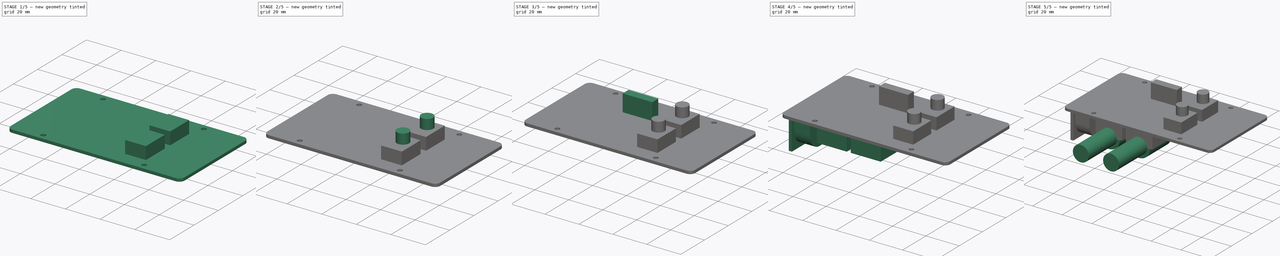
[diagram: build sequence overview — one tinted view per stage of 5, left to right]
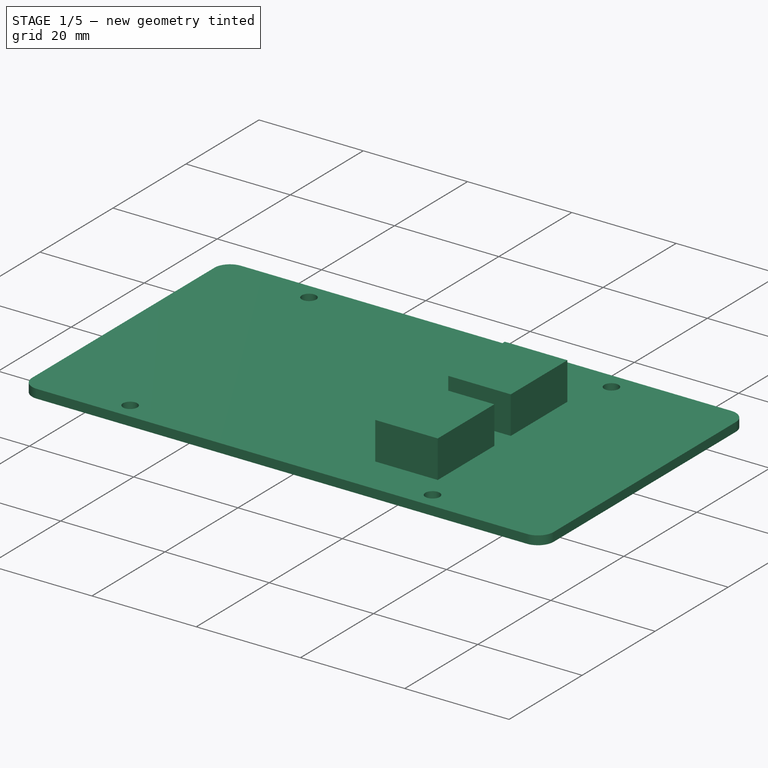
[diagram: stage 1 of 5 — iso view after this stage's code; geometry added in this stage tinted green]
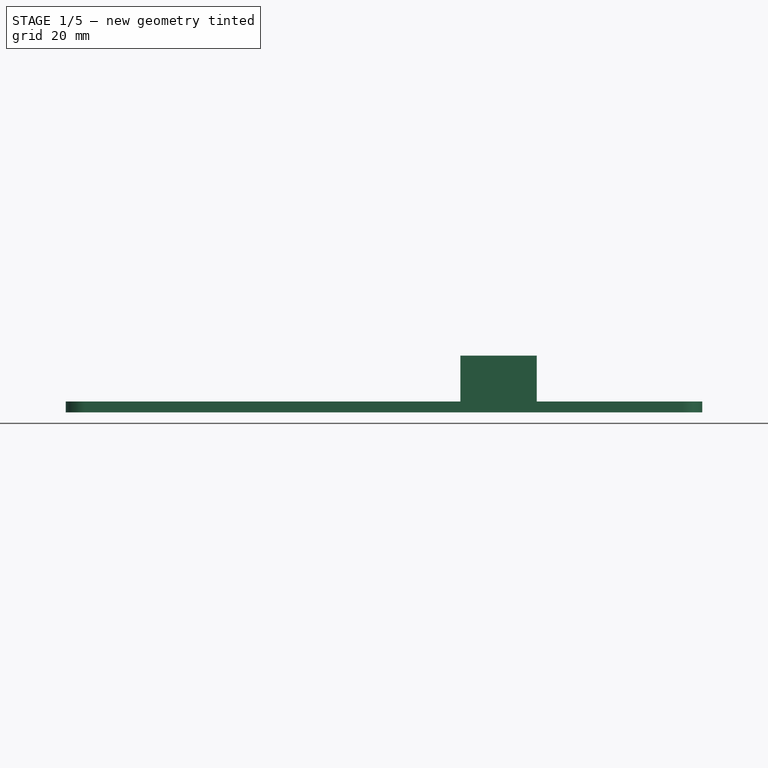
[diagram: stage 1 of 5 — front view after this stage's code; geometry added in this stage tinted green]
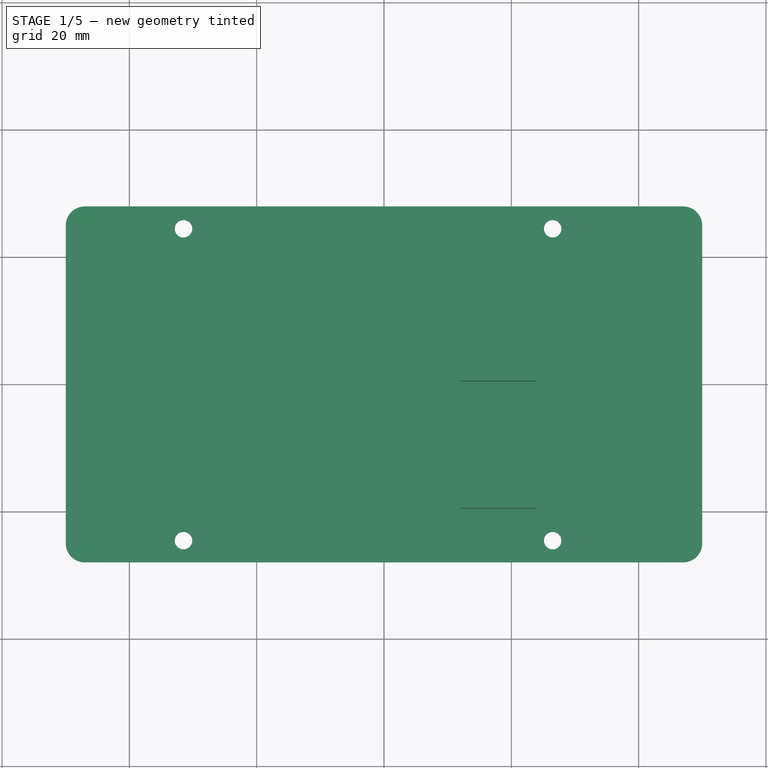
[diagram: stage 1 of 5 — top view after this stage's code; geometry added in this stage tinted green]
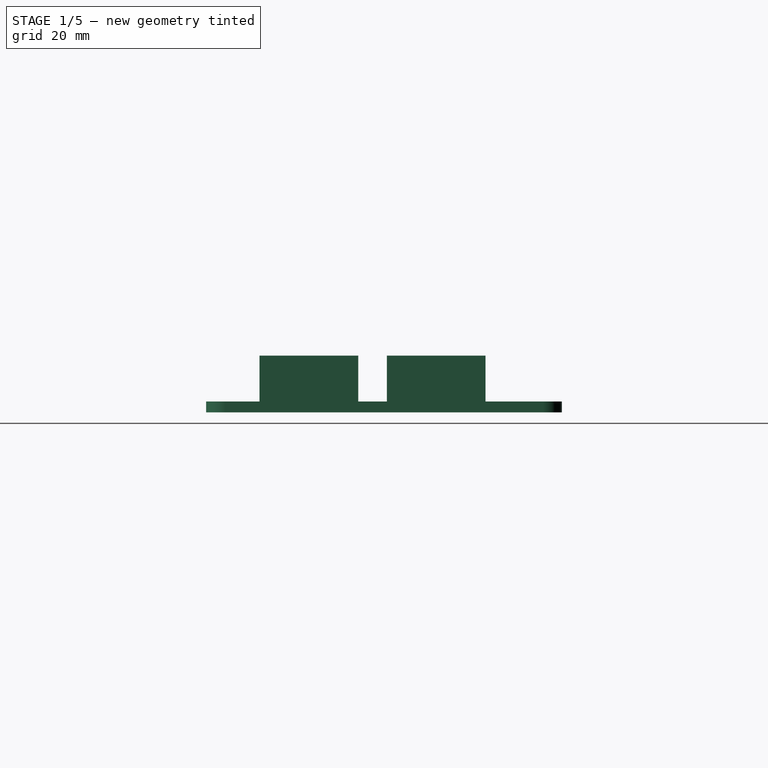
[diagram: stage 1 of 5 — right view after this stage's code; geometry added in this stage tinted green]
FCSTD DOCUMENT  (FreeCAD 0.17R13541 (Git))
Label: pisound
License: All rights reserved
LicenseURL: http://en.wikipedia.org/wiki/All_rights_reserved
objects: Sketcher::SketchObject×13, PartDesign::Pad×12, PartDesign::Chamfer×2, PartDesign::Pocket×1, PartDesign::Body×1
note: 42 computed .brp shape members not serialized (recipe doc carries the construction recipe); baked Part::Feature solids carry a one-line shape summary decoded from their .brp

FEATURE [Sketcher::SketchObject] Sketch008  label="board001"
  MapMode = 5
  Support = -> [XY_Plane001]
  sketch-geometry (8):
    g0: LineSegment StartX=-47 StartY=27.95 StartZ=0 EndX=47 EndY=27.95 EndZ=0
    g1: LineSegment StartX=50 StartY=24.95 StartZ=0 EndX=50 EndY=-24.95 EndZ=0
    g2: LineSegment StartX=47 StartY=-27.95 StartZ=0 EndX=-47 EndY=-27.95 EndZ=0
    g3: LineSegment StartX=-50 StartY=-24.95 StartZ=0 EndX=-50 EndY=24.95 EndZ=0
    g4: ArcOfCircle CenterX=-47 CenterY=24.95 CenterZ=0 NormalX=0 NormalY=0 NormalZ=1 AngleXU=0 Radius=3 StartAngle=1.5708 EndAngle=3.14159
    g5: ArcOfCircle CenterX=-47 CenterY=-24.95 CenterZ=0 NormalX=0 NormalY=0 NormalZ=1 AngleXU=0 Radius=3 StartAngle=3.14159 EndAngle=4.71239
    g6: ArcOfCircle CenterX=47 CenterY=-24.95 CenterZ=0 NormalX=0 NormalY=0 NormalZ=1 AngleXU=0 Radius=3 StartAngle=4.71239 EndAngle=6.28319
    g7: ArcOfCircle CenterX=47 CenterY=24.95 CenterZ=0 NormalX=0 NormalY=0 NormalZ=1 AngleXU=0 Radius=3 StartAngle=0 EndAngle=1.5708
  constraints (20):
    c: Horizontal(g0)
    c: Horizontal(g2)
    c: Vertical(g1)
    c: Vertical(g3)
    c: Tangent(g0,g4) = 1.5708
    c: Tangent(g3,g4) = 1.5708
    c: Tangent(g2,g5) = 1.5708
    c: Tangent(g3,g5) = 1.5708
    c: Tangent(g1,g6) = 1.5708
    c: Tangent(g2,g6) = 1.5708
    c: Tangent(g0,g7) = 1.5708
    c: Tangent(g1,g7) = 1.5708
    c: DistanceX(g-1,g1) = 50
    c: DistanceX(g3,g1) = 100
    c: DistanceY(g-1,g0) = 27.95
    c: DistanceY(g2,g0) = 55.9
    c: Radius(g4) = 3
    c: Equal(g4,g7)
    c: Equal(g4,g6)
    c: Equal(g4,g5)
FEATURE [PartDesign::Pad] Pad007  label="board002"
  Length = 1.7
  Length2 = 100
  Profile = -> Sketch008
  Type = 0
FEATURE [Sketcher::SketchObject] Sketch009  label="pots"
  ExternalGeometry = -> [Pad007]
  MapMode = 5
  Placement = pos=(0,0,1.7) rot=(0,0,1;0rad)
  Support = -> [Pad007]
  sketch-geometry (8):
    g0: LineSegment StartX=12 StartY=15.95 StartZ=0 EndX=24 EndY=15.95 EndZ=0
    g1: LineSegment StartX=24 StartY=15.95 StartZ=0 EndX=24 EndY=0.45 EndZ=0
    g2: LineSegment StartX=24 StartY=0.45 StartZ=0 EndX=12 EndY=0.45 EndZ=0
    g3: LineSegment StartX=12 StartY=0.45 StartZ=0 EndX=12 EndY=15.95 EndZ=0
    g4: LineSegment StartX=12 StartY=-4.05 StartZ=0 EndX=24 EndY=-4.05 EndZ=0
    g5: LineSegment StartX=24 StartY=-4.05 StartZ=0 EndX=24 EndY=-19.55 EndZ=0
    g6: LineSegment StartX=24 StartY=-19.55 StartZ=0 EndX=12 EndY=-19.55 EndZ=0
    g7: LineSegment StartX=12 StartY=-19.55 StartZ=0 EndX=12 EndY=-4.05 EndZ=0
  constraints (24):
    c: Coincident(g0,g1)
    c: Coincident(g1,g2)
    c: Coincident(g2,g3)
    c: Coincident(g3,g0)
    c: Horizontal(g0)
    c: Horizontal(g2)
    c: Vertical(g1)
    c: Vertical(g3)
    c: Coincident(g4,g5)
    c: Coincident(g5,g6)
    c: Coincident(g6,g7)
    c: Coincident(g7,g4)
    c: Horizontal(g4)
    c: Horizontal(g6)
    c: Vertical(g5)
    c: Vertical(g7)
    c: Equal(g0,g4)
    c: Equal(g7,g3)
    c: DistanceY(g3,g3) = 15.5
    c: DistanceX(g0,g0) = 12
    c: DistanceX(g-3,g0) = 62
    c: Vertical(g0,g4)
    c: DistanceY(g4,g2) = 4.5
    c: DistanceY(g0,g-4) = 12
FEATURE [PartDesign::Pad] Pad008  label="potsbase001"
  BaseFeature = -> Pad007
  Length = 7.2
  Length2 = 100
  Profile = -> Sketch009
  Type = 0
FEATURE [Sketcher::SketchObject] Sketch010  label="mountingholes"
  ExternalGeometry = -> [Pad008]
  MapMode = 5
  Placement = pos=(0,0,1.7) rot=(0,0,1;0rad)
  Support = -> [Pad008]
  sketch-geometry (4):
    g0: Circle CenterX=26.5 CenterY=24.45 CenterZ=0 NormalX=0 NormalY=0 NormalZ=1 AngleXU=0 Radius=1.375
    g1: Circle CenterX=-31.5 CenterY=24.45 CenterZ=0 NormalX=0 NormalY=0 NormalZ=1 AngleXU=0 Radius=1.375
    g2: Circle CenterX=-31.5 CenterY=-24.55 CenterZ=0 NormalX=0 NormalY=0 NormalZ=1 AngleXU=0 Radius=1.375
    g3: Circle CenterX=26.5 CenterY=-24.55 CenterZ=0 NormalX=0 NormalY=0 NormalZ=1 AngleXU=0 Radius=1.375
  constraints (12):
    c: DistanceX(g0,g-4) = 23.5
    c: DistanceY(g0,g-3) = 3.5
    c: Radius(g0) = 1.375
    c: Equal(g0,g1)
    c: Equal(g0,g2)
    c: Equal(g0,g3)
    c: Horizontal(g0,g1)
    c: Vertical(g1,g2)
    c: Horizontal(g2,g3)
    c: Vertical(g0,g3)
    c: DistanceX(g2,g3) = 58
    c: DistanceY(g2,g1) = 49
FEATURE [PartDesign::Pocket] Pocket001  label="mountingholes001"
  BaseFeature = -> Pad008
  Length = 5
  Length2 = 100
  Profile = -> Sketch010
  Type = 1
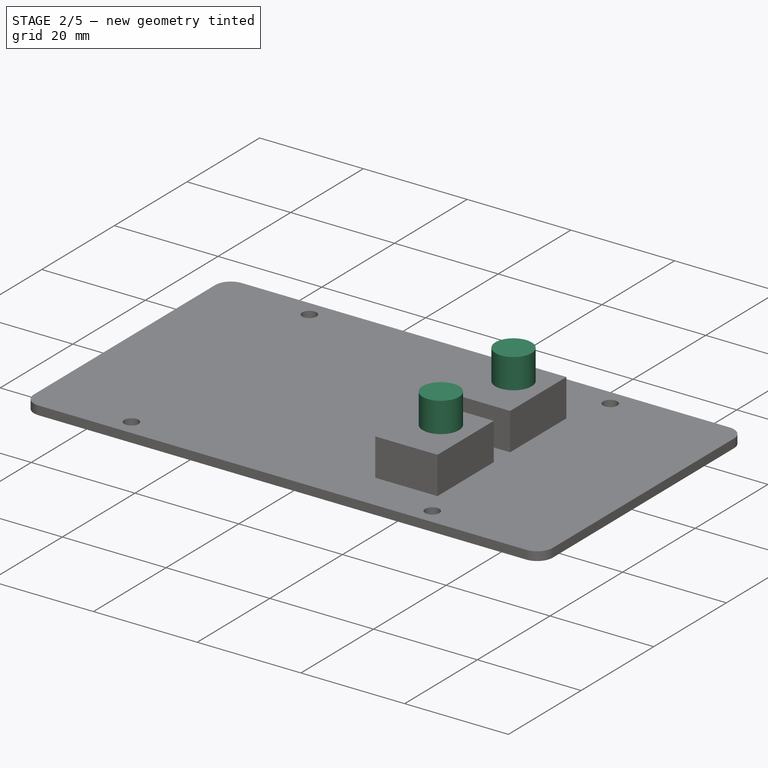
[diagram: stage 2 of 5 — iso view after this stage's code; geometry added in this stage tinted green]
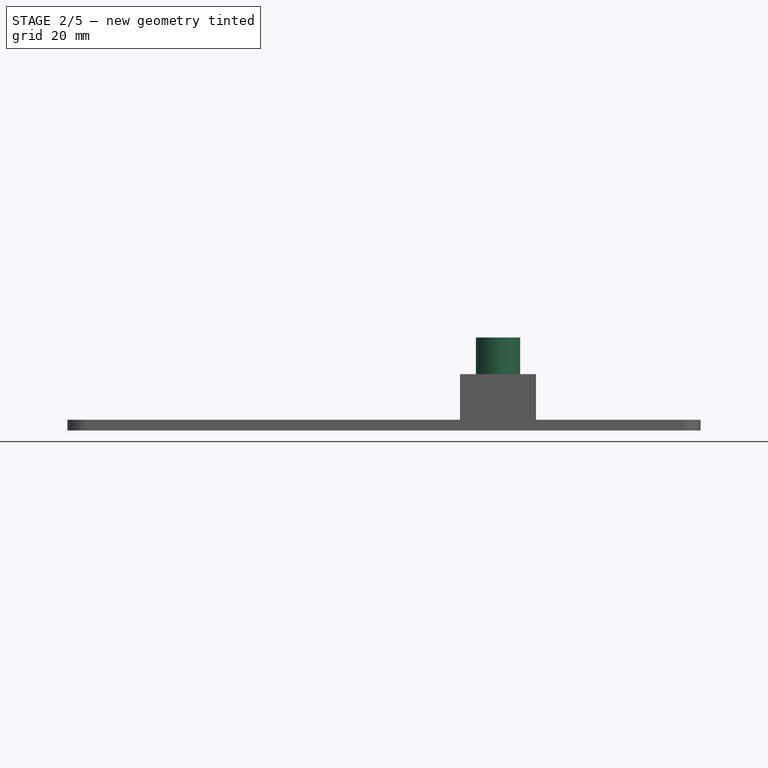
[diagram: stage 2 of 5 — front view after this stage's code; geometry added in this stage tinted green]
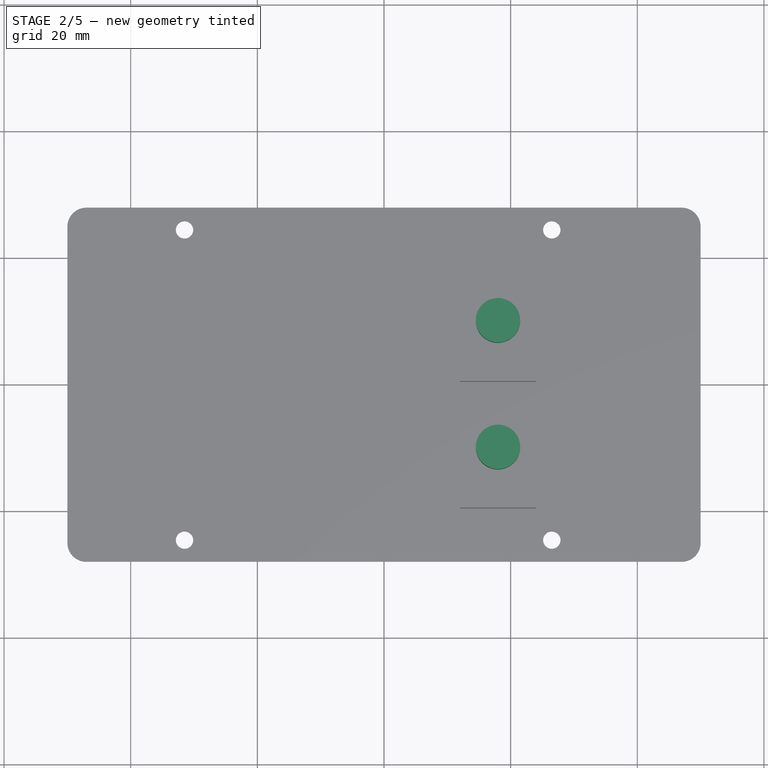
[diagram: stage 2 of 5 — top view after this stage's code; geometry added in this stage tinted green]
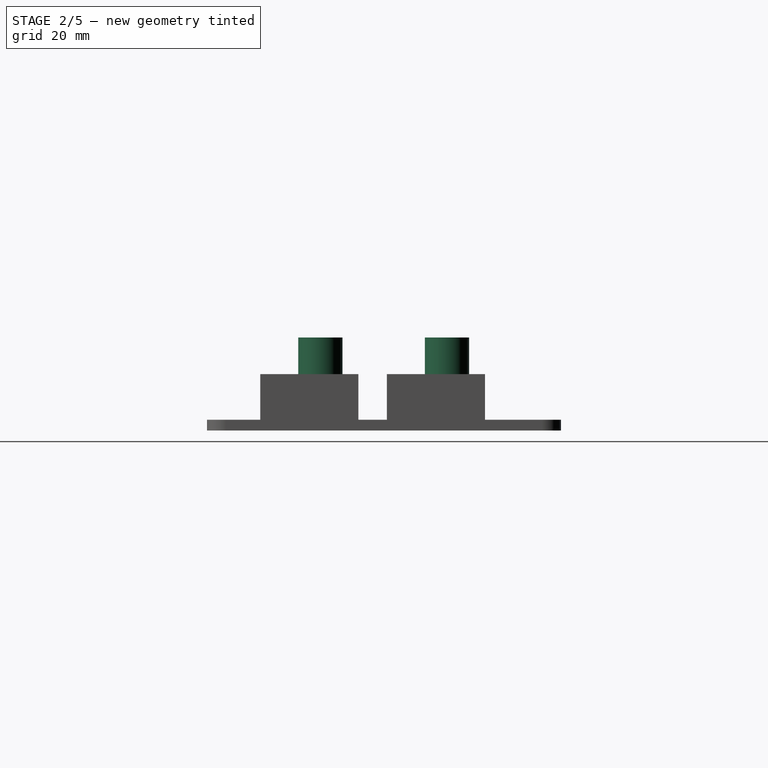
[diagram: stage 2 of 5 — right view after this stage's code; geometry added in this stage tinted green]
FEATURE [Sketcher::SketchObject] Sketch012
  ExternalGeometry = -> [Pocket001]
  MapMode = 5
  Placement = pos=(0,0,8.9) rot=(0,0,1;0rad)
  Support = -> [Pocket001]
  sketch-geometry (1):
    g0: Circle CenterX=18 CenterY=9.95 CenterZ=0 NormalX=0 NormalY=0 NormalZ=1 AngleXU=0 Radius=3.5
  constraints (3):
    c: DistanceX(g-3,g0) = 68
    c: DistanceY(g0,g-4) = 6
    c: Radius(g0) = 3.5
FEATURE [PartDesign::Pad] Pad009  label="potshaft1"
  BaseFeature = -> Pocket001
  Length = 5.8
  Length2 = 100
  Profile = -> Sketch012
  Type = 0
FEATURE [PartDesign::Chamfer] Chamfer  label="potchamfer"
  Base = -> Pad009 [Edge63]
  BaseFeature = -> Pad009
  Size = 0.01
FEATURE [Sketcher::SketchObject] Sketch013
  ExternalGeometry = -> [Chamfer]
  MapMode = 5
  Placement = pos=(0,0,8.9) rot=(0,0,1;0rad)
  Support = -> [Chamfer]
  sketch-geometry (1):
    g0: Circle CenterX=18 CenterY=-10.05 CenterZ=0 NormalX=0 NormalY=0 NormalZ=1 AngleXU=0 Radius=3.5
  constraints (3):
    c: DistanceX(g-3,g0) = 68
    c: DistanceY(g0,g-4) = 6
    c: Radius(g0) = 3.5
FEATURE [PartDesign::Pad] Pad010  label="potshaf002"
  BaseFeature = -> Chamfer
  Length = 5.8
  Length2 = 100
  Profile = -> Sketch013
  Type = 0
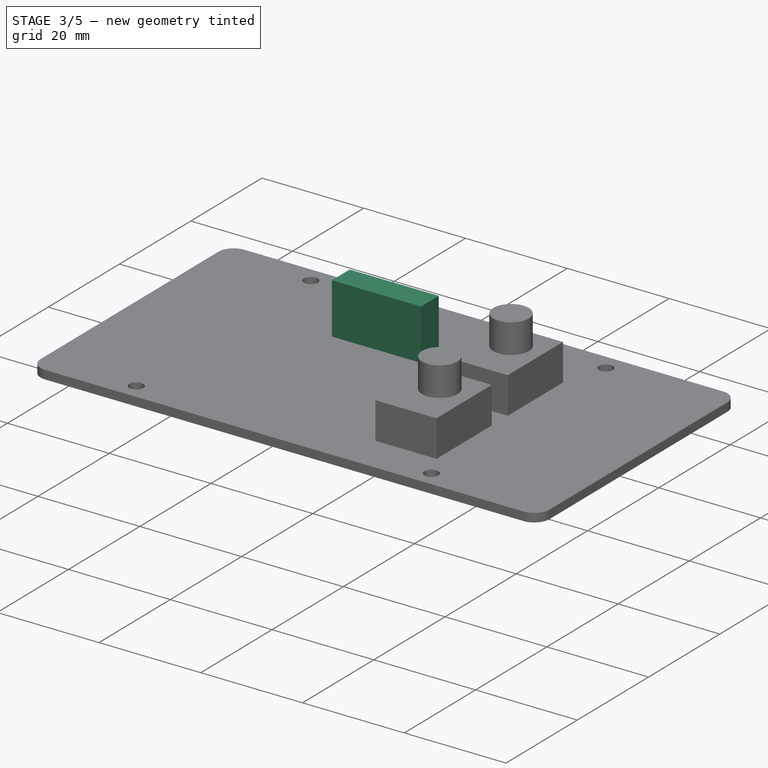
[diagram: stage 3 of 5 — iso view after this stage's code; geometry added in this stage tinted green]
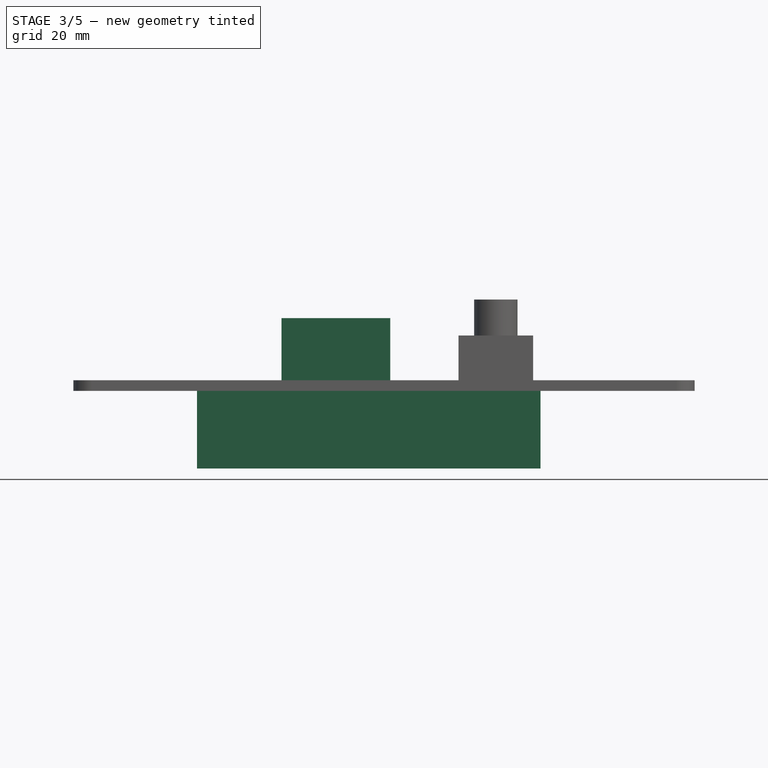
[diagram: stage 3 of 5 — front view after this stage's code; geometry added in this stage tinted green]
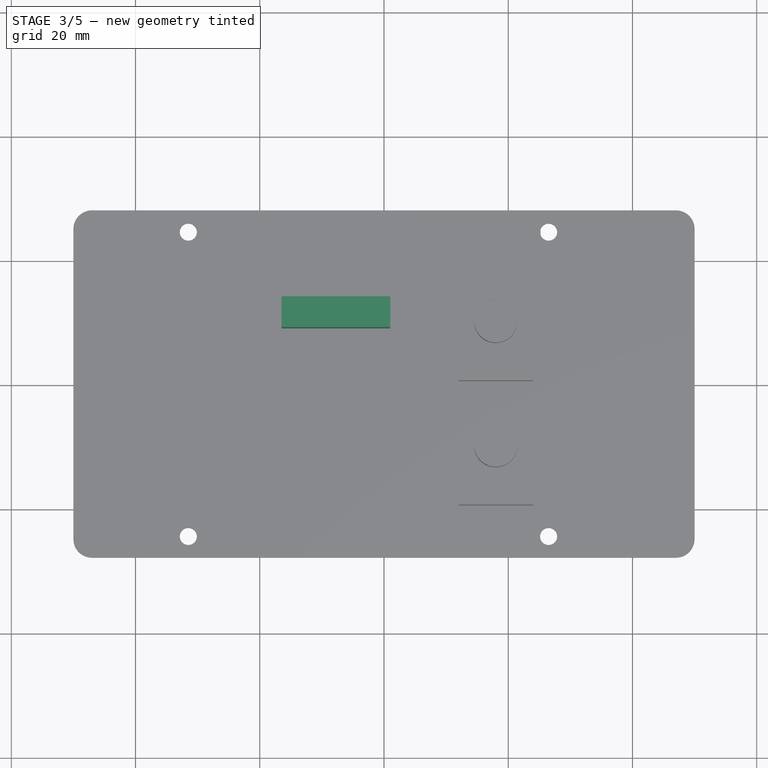
[diagram: stage 3 of 5 — top view after this stage's code; geometry added in this stage tinted green]
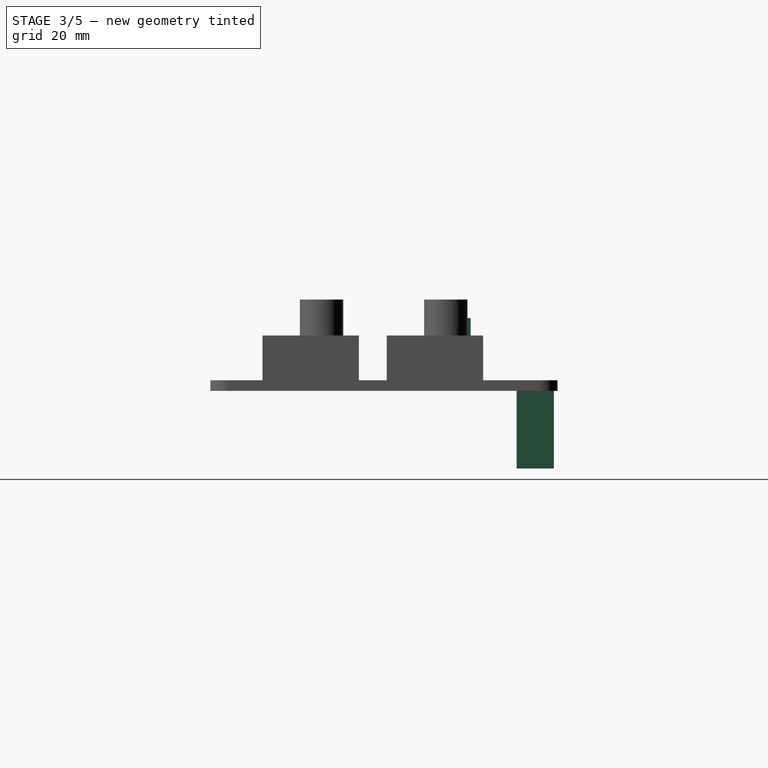
[diagram: stage 3 of 5 — right view after this stage's code; geometry added in this stage tinted green]
FEATURE [PartDesign::Chamfer] Chamfer001  label="potchamfer001"
  Base = -> Pad010 [Edge68]
  BaseFeature = -> Pad010
  Size = 0.01
FEATURE [Sketcher::SketchObject] Sketch  label="pins-sketch"
  ExternalGeometry = -> [Chamfer001]
  MapMode = 5
  Placement = pos=(0,0,1.7) rot=(0,0,1;0rad)
  Support = -> [Chamfer001]
  sketch-geometry (4):
    g0: LineSegment StartX=-16.5 StartY=13.95 StartZ=0 EndX=1 EndY=13.95 EndZ=0
    g1: LineSegment StartX=1 StartY=13.95 StartZ=0 EndX=1 EndY=8.95 EndZ=0
    g2: LineSegment StartX=1 StartY=8.95 StartZ=0 EndX=-16.5 EndY=8.95 EndZ=0
    g3: LineSegment StartX=-16.5 StartY=8.95 StartZ=0 EndX=-16.5 EndY=13.95 EndZ=0
  constraints (12):
    c: Coincident(g0,g1)
    c: Coincident(g1,g2)
    c: Coincident(g2,g3)
    c: Coincident(g3,g0)
    c: Horizontal(g0)
    c: Horizontal(g2)
    c: Vertical(g1)
    c: Vertical(g3)
    c: DistanceY(g1,g1) = 5
    c: DistanceX(g0,g0) = 17.5
    c: DistanceY(g0,g-3) = 14
    c: DistanceX(g0,g-4) = 49
FEATURE [PartDesign::Pad] Pad
  BaseFeature = -> Chamfer001
  Length = 10
  Length2 = 100
  Profile = -> Sketch
  Type = 0
FEATURE [Sketcher::SketchObject] Sketch014
  ExternalGeometry = -> [Pad]
  MapMode = 5
  Placement = pos=(0,0,0) rot=(1,0,0;3.14159rad)
  Support = -> [Pad]
  sketch-geometry (4):
    g0: LineSegment StartX=-30.1 StartY=-21.35 StartZ=0 EndX=25.2 EndY=-21.35 EndZ=0
    g1: LineSegment StartX=25.2 StartY=-21.35 StartZ=0 EndX=25.2 EndY=-27.35 EndZ=0
    g2: LineSegment StartX=25.2 StartY=-27.35 StartZ=0 EndX=-30.1 EndY=-27.35 EndZ=0
    g3: LineSegment StartX=-30.1 StartY=-27.35 StartZ=0 EndX=-30.1 EndY=-21.35 EndZ=0
  constraints (12):
    c: Coincident(g0,g1)
    c: Coincident(g1,g2)
    c: Coincident(g2,g3)
    c: Coincident(g3,g0)
    c: Horizontal(g0)
    c: Horizontal(g2)
    c: Vertical(g1)
    c: Vertical(g3)
    c: DistanceX(g0,g0) = 55.3
    c: DistanceY(g3,g3) = 6
    c: DistanceX(g0,g-3) = 24.8
    c: DistanceY(g-4,g2) = 0.6
FEATURE [PartDesign::Pad] Pad011  label="gpio"
  BaseFeature = -> Pad
  Length = 12.5
  Length2 = 100
  Profile = -> Sketch014
  Type = 0
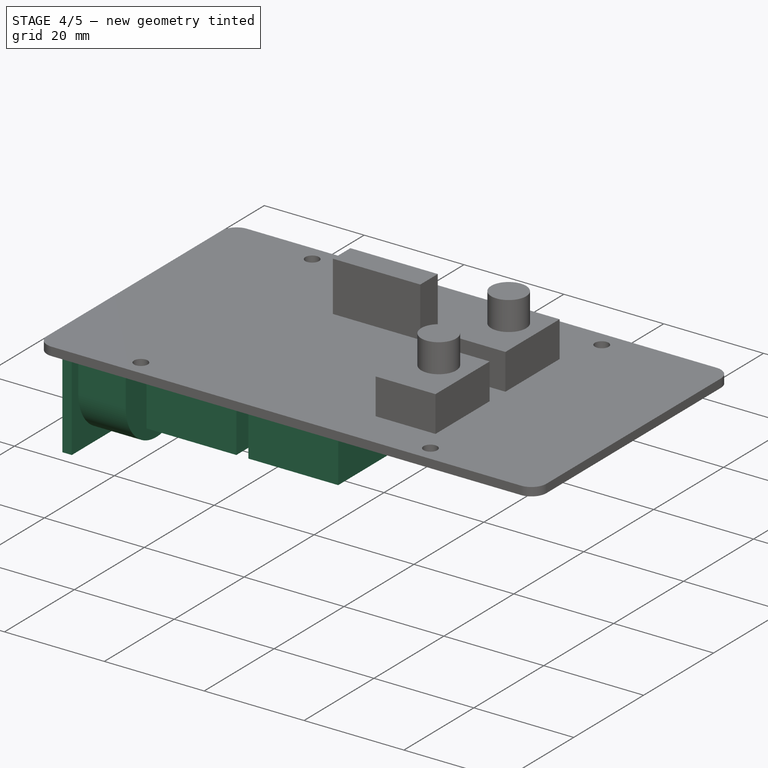
[diagram: stage 4 of 5 — iso view after this stage's code; geometry added in this stage tinted green]
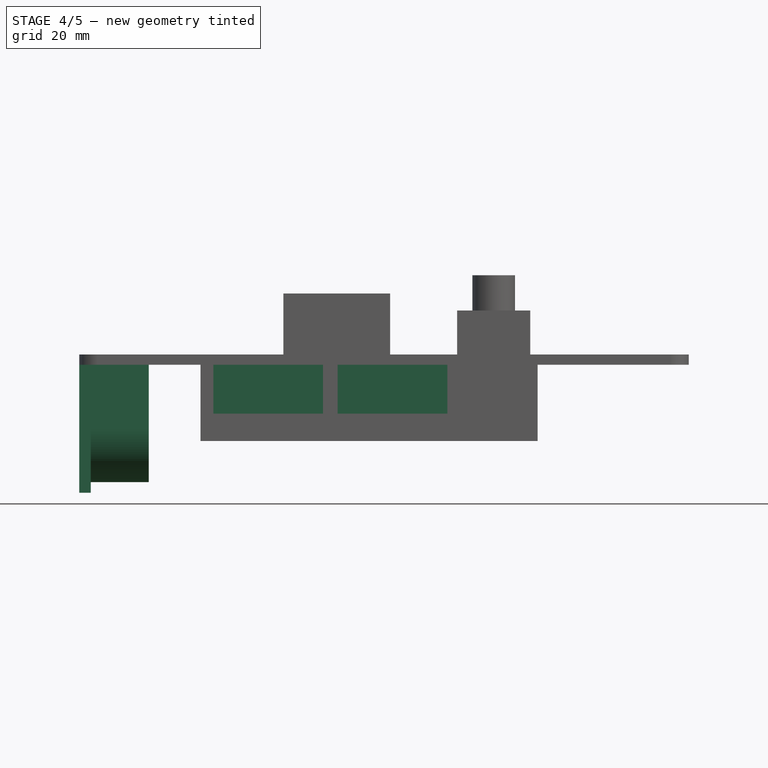
[diagram: stage 4 of 5 — front view after this stage's code; geometry added in this stage tinted green]
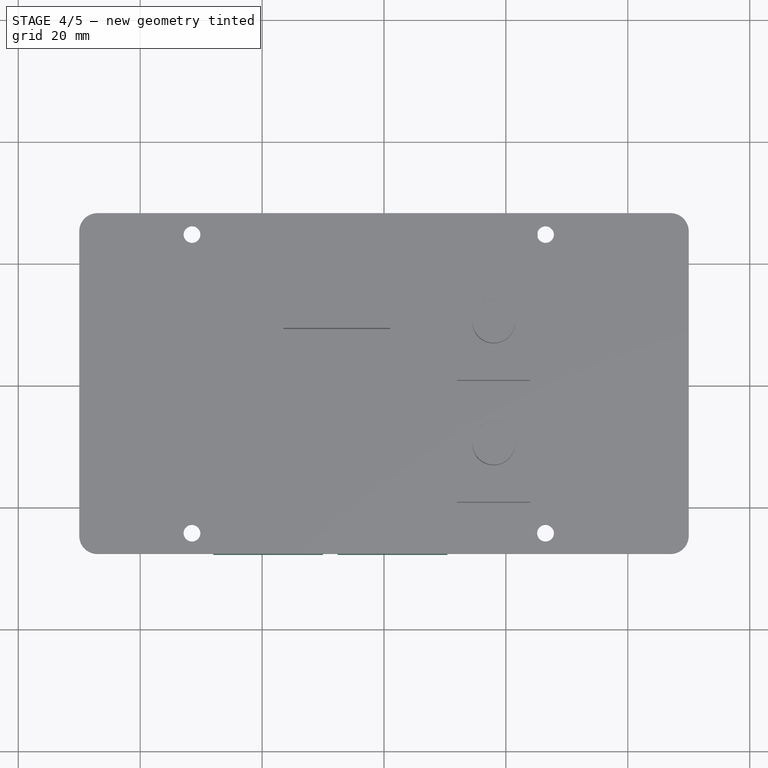
[diagram: stage 4 of 5 — top view after this stage's code; geometry added in this stage tinted green]
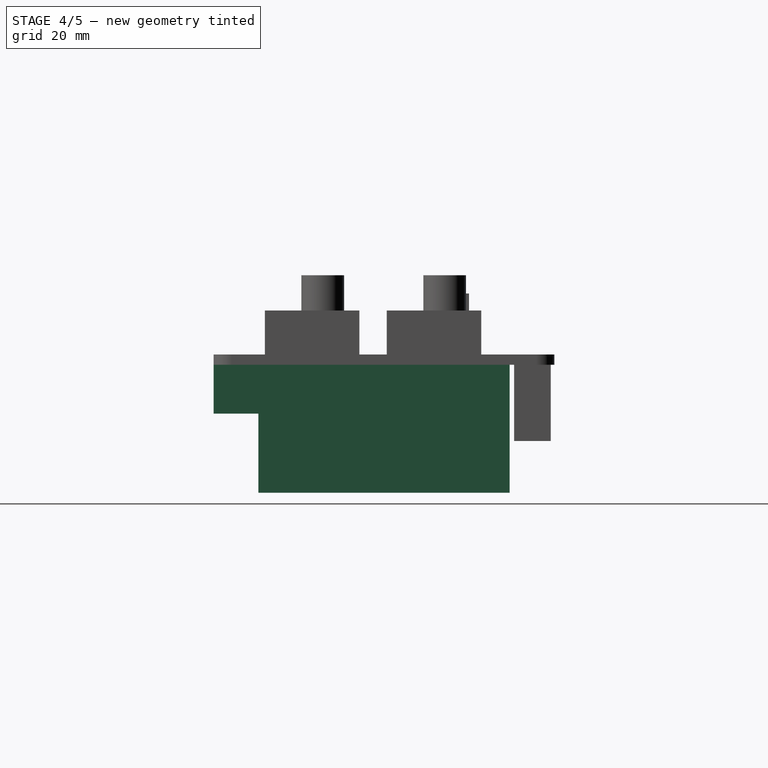
[diagram: stage 4 of 5 — right view after this stage's code; geometry added in this stage tinted green]
FEATURE [Sketcher::SketchObject] Sketch015
  ExternalGeometry = -> [Pad011]
  MapMode = 5
  Placement = pos=(0,0,0) rot=(1,0,0;3.14159rad)
  Support = -> [Pad011]
  sketch-geometry (4):
    g0: LineSegment StartX=-50 StartY=20.6 StartZ=0 EndX=-48.1 EndY=20.6 EndZ=0
    g1: LineSegment StartX=-48.1 StartY=20.6 StartZ=0 EndX=-48.1 EndY=-20.6 EndZ=0
    g2: LineSegment StartX=-48.1 StartY=-20.6 StartZ=0 EndX=-50 EndY=-20.6 EndZ=0
    g3: LineSegment StartX=-50 StartY=-20.6 StartZ=0 EndX=-50 EndY=20.6 EndZ=0
  constraints (12):
    c: Coincident(g0,g1)
    c: Coincident(g1,g2)
    c: Coincident(g2,g3)
    c: Coincident(g3,g0)
    c: Horizontal(g0)
    c: Horizontal(g2)
    c: Vertical(g1)
    c: Vertical(g3)
    c: DistanceY(g3,g3) = 41.2
    c: DistanceX(g0,g0) = 1.9
    c: Vertical(g0,g-3)
    c: DistanceY(g-4,g1) = 7.35
FEATURE [PartDesign::Pad] Pad012  label="midiport-front"
  BaseFeature = -> Pad011
  Length = 21
  Length2 = 100
  Profile = -> Sketch015
  Type = 0
FEATURE [Sketcher::SketchObject] Sketch016
  ExternalGeometry = -> [Pad012]
  MapMode = 5
  Placement = pos=(-48.1,0,0) rot=(0.57735,0.57735,0.57735;2.0944rad)
  Support = -> [Pad012]
  sketch-geometry (8):
    g0: ArcOfCircle CenterX=-10 CenterY=-10.5 CenterZ=0 NormalX=0 NormalY=0 NormalZ=1 AngleXU=0 Radius=8.75 StartAngle=3.14159 EndAngle=6.28319
    g1: ArcOfCircle CenterX=10 CenterY=-10.5 CenterZ=0 NormalX=0 NormalY=0 NormalZ=1 AngleXU=0 Radius=8.75 StartAngle=3.14159 EndAngle=6.28319
    g2: LineSegment StartX=-18.75 StartY=0 StartZ=0 EndX=-1.25 EndY=0 EndZ=0
    g3: LineSegment StartX=-1.25 StartY=0 StartZ=0 EndX=-1.25 EndY=-10.5 EndZ=0
    g4: LineSegment StartX=-18.75 StartY=-10.5 StartZ=0 EndX=-18.75 EndY=0 EndZ=0
    g5: LineSegment StartX=1.25 StartY=0 StartZ=0 EndX=18.75 EndY=0 EndZ=0
    g6: LineSegment StartX=18.75 StartY=0 StartZ=0 EndX=18.75 EndY=-10.5 EndZ=0
    g7: LineSegment StartX=1.25 StartY=-10.5 StartZ=0 EndX=1.25 EndY=0 EndZ=0
  constraints (24):
    c: Radius(g0) = 8.75
    c: Equal(g0,g1)
    c: DistanceX(g0,g1) = 20
    c: DistanceX(g1,g-4) = 10.6
    c: DistanceY(g1,g-3) = 10.5
    c: Coincident(g2,g3)
    c: Coincident(g4,g2)
    c: Horizontal(g2)
    c: Vertical(g3)
    c: Vertical(g4)
    c: Coincident(g5,g6)
    c: Coincident(g7,g5)
    c: Horizontal(g5)
    c: Vertical(g6)
    c: Vertical(g7)
    c: Equal(g3,g6)
    c: Horizontal(g5,g-3)
    c: Horizontal(g5,g2)
    c: Horizontal(g1,g6)
    c: Horizontal(g0,g1)
    c: Coincident(g0,g4)
    c: Coincident(g0,g3)
    c: Coincident(g1,g7)
    c: Coincident(g1,g6)
FEATURE [PartDesign::Pad] Pad013  label="midiport-round"
  BaseFeature = -> Pad012
  Length = 9.5
  Length2 = 100
  Profile = -> Sketch016
  Type = 0
FEATURE [Sketcher::SketchObject] Sketch017
  ExternalGeometry = -> [Pad013]
  MapMode = 5
  Placement = pos=(0,0,0) rot=(1,0,0;3.14159rad)
  Support = -> [Pad013]
  sketch-geometry (16):
    g0: LineSegment StartX=-28 StartY=27.95 StartZ=0 EndX=-10 EndY=27.95 EndZ=0
    g1: LineSegment StartX=-10 StartY=27.95 StartZ=0 EndX=-10 EndY=6.95 EndZ=0
    g2: LineSegment StartX=-10 StartY=6.95 StartZ=0 EndX=-28 EndY=6.95 EndZ=0
    g3: LineSegment StartX=-28 StartY=6.95 StartZ=0 EndX=-28 EndY=27.95 EndZ=0
    g4: LineSegment StartX=-7.6 StartY=27.95 StartZ=0 EndX=10.4 EndY=27.95 EndZ=0
    g5: LineSegment StartX=10.4 StartY=27.95 StartZ=0 EndX=10.4 EndY=6.95 EndZ=0
    g6: LineSegment StartX=10.4 StartY=6.95 StartZ=0 EndX=-7.6 EndY=6.95 EndZ=0
    g7: LineSegment StartX=-7.6 StartY=6.95 StartZ=0 EndX=-7.6 EndY=27.95 EndZ=0
    g8: LineSegment StartX=-23.5 StartY=6.95 StartZ=0 EndX=-14.5 EndY=6.95 EndZ=0
    g9: LineSegment StartX=-14.5 StartY=6.95 StartZ=0 EndX=-14.5 EndY=3.95 EndZ=0
    g10: LineSegment StartX=-14.5 StartY=3.95 StartZ=0 EndX=-23.5 EndY=3.95 EndZ=0
    g11: LineSegment StartX=-23.5 StartY=3.95 StartZ=0 EndX=-23.5 EndY=6.95 EndZ=0
    g12: LineSegment StartX=-3.1 StartY=6.95 StartZ=0 EndX=5.9 EndY=6.95 EndZ=0
    g13: LineSegment StartX=5.9 StartY=6.95 StartZ=0 EndX=5.9 EndY=3.95 EndZ=0
    g14: LineSegment StartX=5.9 StartY=3.95 StartZ=0 EndX=-3.1 EndY=3.95 EndZ=0
    g15: LineSegment StartX=-3.1 StartY=3.95 StartZ=0 EndX=-3.1 EndY=6.95 EndZ=0
  constraints (48):
    c: Coincident(g0,g1)
    c: Coincident(g1,g2)
    c: Coincident(g2,g3)
    c: Coincident(g3,g0)
    c: Horizontal(g0)
    c: Horizontal(g2)
    c: Vertical(g1)
    c: Vertical(g3)
    c: Coincident(g4,g5)
    c: Coincident(g5,g6)
    c: Coincident(g6,g7)
    c: Coincident(g7,g4)
    c: Horizontal(g4)
    c: Horizontal(g6)
    c: Vertical(g5)
    c: Vertical(g7)
    c: Equal(g0,g4)
    c: Equal(g3,g7)
    c: DistanceX(g0,g0) = 18
    c: DistanceY(g3,g3) = 21
    c: Coincident(g8,g9)
    c: Coincident(g9,g10)
    c: Coincident(g10,g11)
    c: Coincident(g11,g8)
    c: Horizontal(g8)
    c: Horizontal(g10)
    c: Vertical(g9)
    c: Vertical(g11)
    c: Coincident(g12,g13)
    c: Coincident(g13,g14)
    c: Coincident(g14,g15)
    c: Coincident(g15,g12)
    c: Horizontal(g12)
    c: Horizontal(g14)
    c: Vertical(g13)
    c: Vertical(g15)
    c: Equal(g9,g13)
    c: DistanceY(g9,g9) = 3
    c: Horizontal(g8,g2)
    c: Horizontal(g12,g6)
    c: Horizontal(g-3,g0)
    c: Horizontal(g0,g4)
    c: DistanceX(g2,g8) = 4.5
    c: DistanceX(g10,g10) = 9
    c: Equal(g10,g14)
    c: DistanceX(g6,g12) = 4.5
    c: DistanceX(g0,g4) = 2.4
    c: DistanceX(g-4,g0) = 22
FEATURE [PartDesign::Pad] Pad014  label="jacksbase"
  BaseFeature = -> Pad013
  Length = 8
  Length2 = 100
  Profile = -> Sketch017
  Type = 0
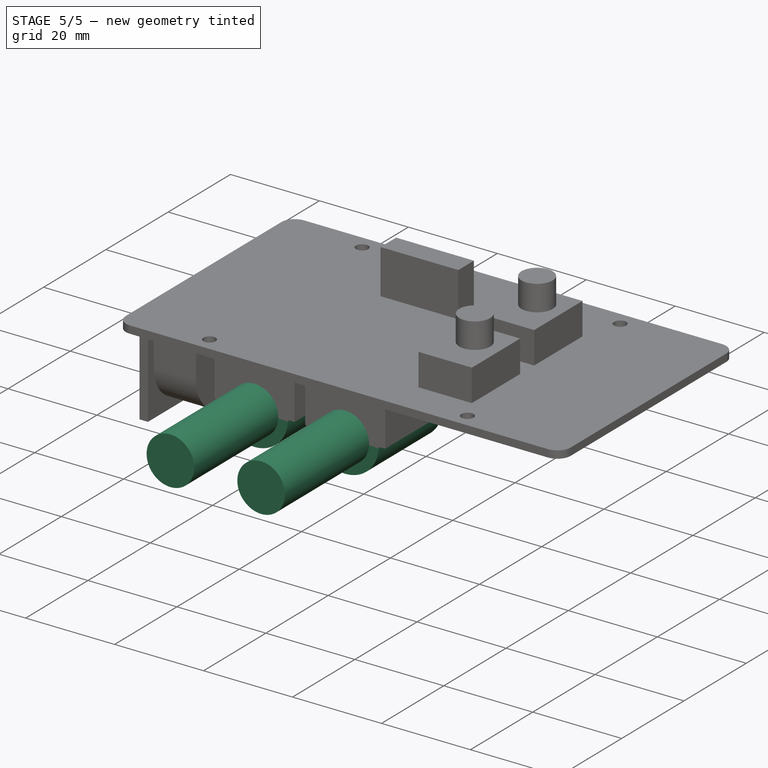
[diagram: stage 5 of 5 — iso view after this stage's code; geometry added in this stage tinted green]
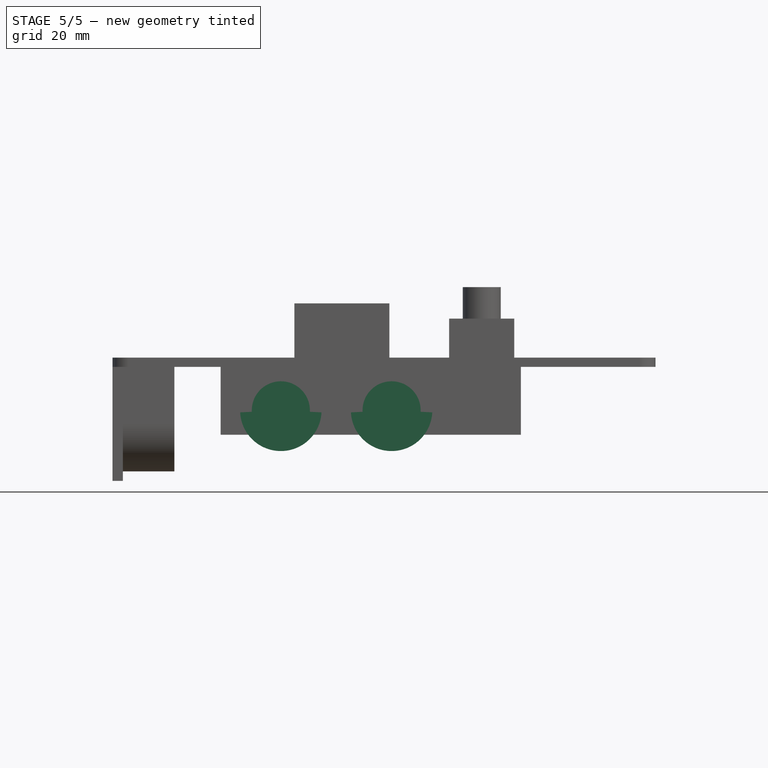
[diagram: stage 5 of 5 — front view after this stage's code; geometry added in this stage tinted green]
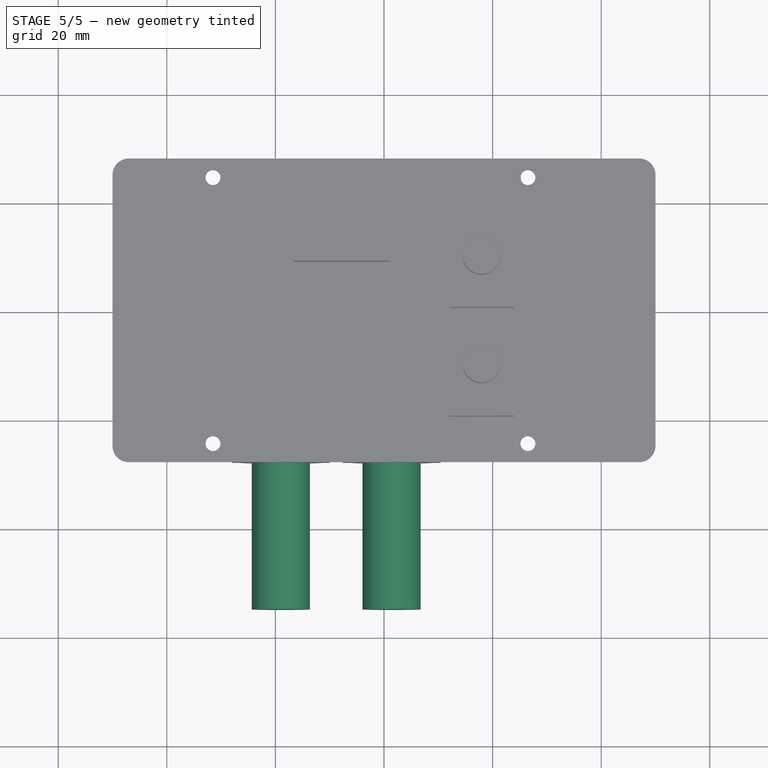
[diagram: stage 5 of 5 — top view after this stage's code; geometry added in this stage tinted green]
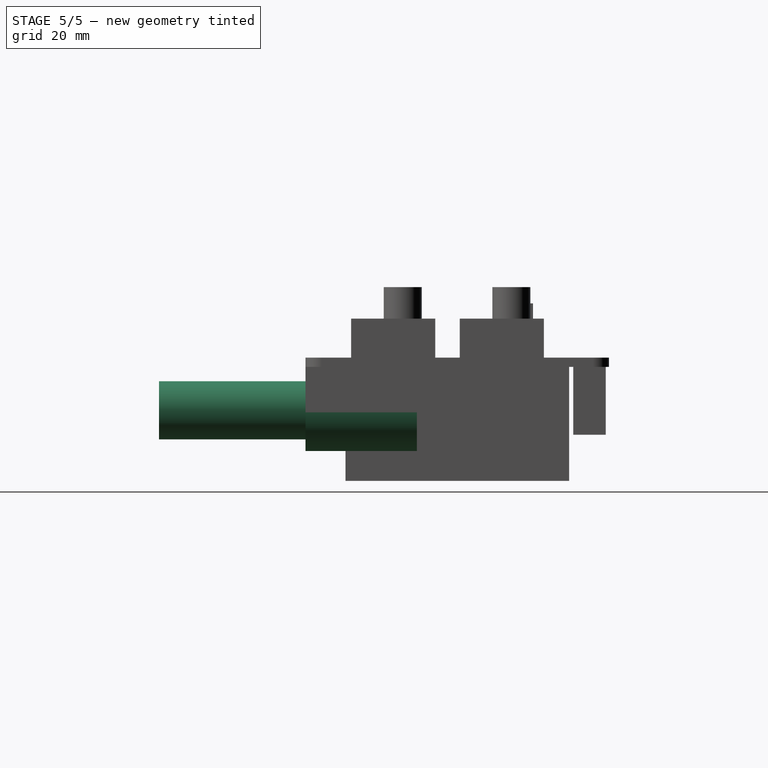
[diagram: stage 5 of 5 — right view after this stage's code; geometry added in this stage tinted green]
FEATURE [Sketcher::SketchObject] Sketch018
  ExternalGeometry = -> [Pad014]
  MapMode = 5
  Placement = pos=(0,-27.95,0) rot=(1,0,0;1.5708rad)
  Support = -> [Pad014]
  sketch-geometry (1):
    g0: Circle CenterX=1.4 CenterY=-8 CenterZ=0 NormalX=0 NormalY=0 NormalZ=1 AngleXU=0 Radius=7.5
  constraints (3):
    c: Radius(g0) = 7.5
    c: DistanceX(g0,g-3) = 9
    c: Horizontal(g-3,g0)
FEATURE [Sketcher::SketchObject] Sketch019
  ExternalGeometry = -> [Sketch018,Pad014]
  MapMode = 5
  Placement = pos=(0,-27.95,0) rot=(1,0,0;1.5708rad)
  Support = -> [Pad014]
  sketch-geometry (1):
    g0: Circle CenterX=-19 CenterY=-8 CenterZ=0 NormalX=0 NormalY=0 NormalZ=1 AngleXU=0 Radius=7.5
  constraints (3):
    c: Equal(g0,g-3)
    c: DistanceX(g0,g-4) = 9
    c: Horizontal(g0,g-3)
FEATURE [PartDesign::Pad] Pad015  label="jackround"
  BaseFeature = -> Pad014
  Length = 20.5
  Length2 = 100
  Profile = -> Sketch018
  Refine = true
  Reversed = true
  Type = 0
FEATURE [PartDesign::Pad] Pad016  label="jackround001"
  BaseFeature = -> Pad015
  Length = 20.5
  Length2 = 100
  Profile = -> Sketch019
  Refine = true
  Reversed = true
  Type = 0
FEATURE [Sketcher::SketchObject] Sketch020
  ExternalGeometry = -> [Pad016]
  MapMode = 5
  Placement = pos=(0,-27.95,0) rot=(1,0,0;1.5708rad)
  Support = -> [Pad016]
  sketch-geometry (2):
    g0: Circle CenterX=1.4 CenterY=-8 CenterZ=0 NormalX=0 NormalY=0 NormalZ=1 AngleXU=0 Radius=5.35
    g1: Circle CenterX=-19 CenterY=-8 CenterZ=0 NormalX=0 NormalY=0 NormalZ=1 AngleXU=0 Radius=5.35
  constraints (5):
    c: Equal(g0,g1)
    c: Horizontal(g1,g0)
    c: Coincident(g-3,g1)
    c: Coincident(g0,g-4)
    c: Radius(g0) = 5.35
FEATURE [PartDesign::Pad] Pad017  label="jackout"
  BaseFeature = -> Pad016
  Length = 27
  Length2 = 100
  Profile = -> Sketch020
  Type = 0
FEATURE [PartDesign::Body] Body001  label="pisound"
  Group = -> [Sketch008,Pad007,Sketch009,Pad008,Sketch010,Pocket001,Sketch012,Pad009,Chamfer,Sketch013,Pad010,Chamfer001,Sketch,Pad,Sketch014,Pad011,Sketch015,Pad012,Sketch016,Pad013,Sketch017,Pad014,Sketch018,Sketch019,Pad015,Pad016,Sketch020,Pad017]
  Origin = -> Origin001
  Tip = -> Pad017
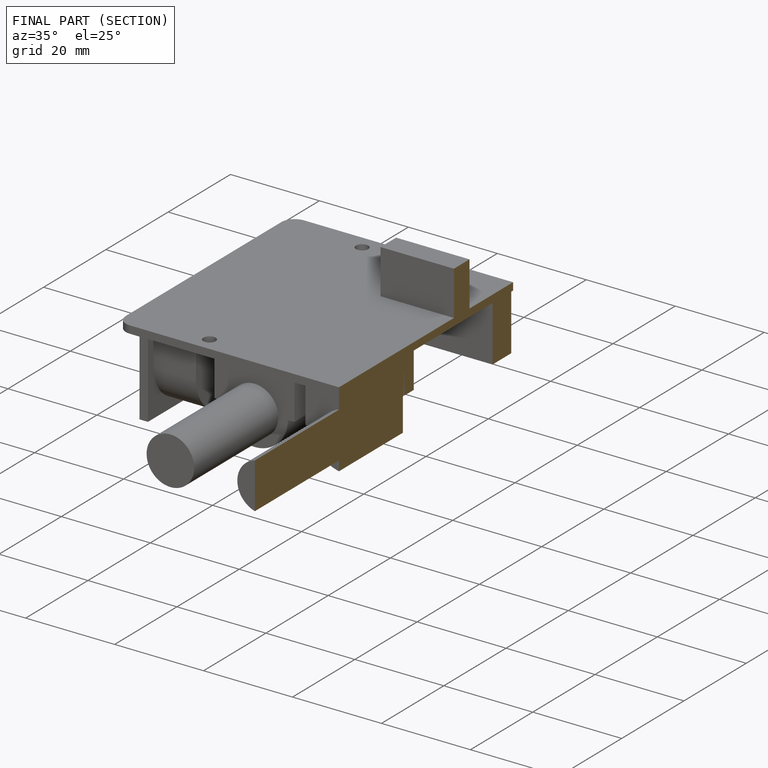
[diagram: finished part — half-section view (interior)]
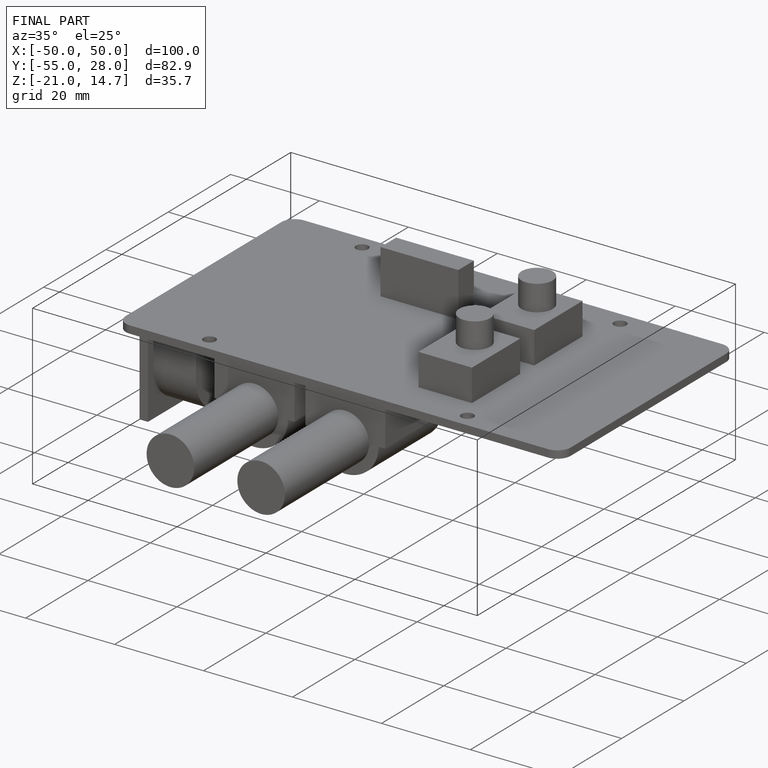
[diagram: finished part — iso view with bounding-box wireframe]
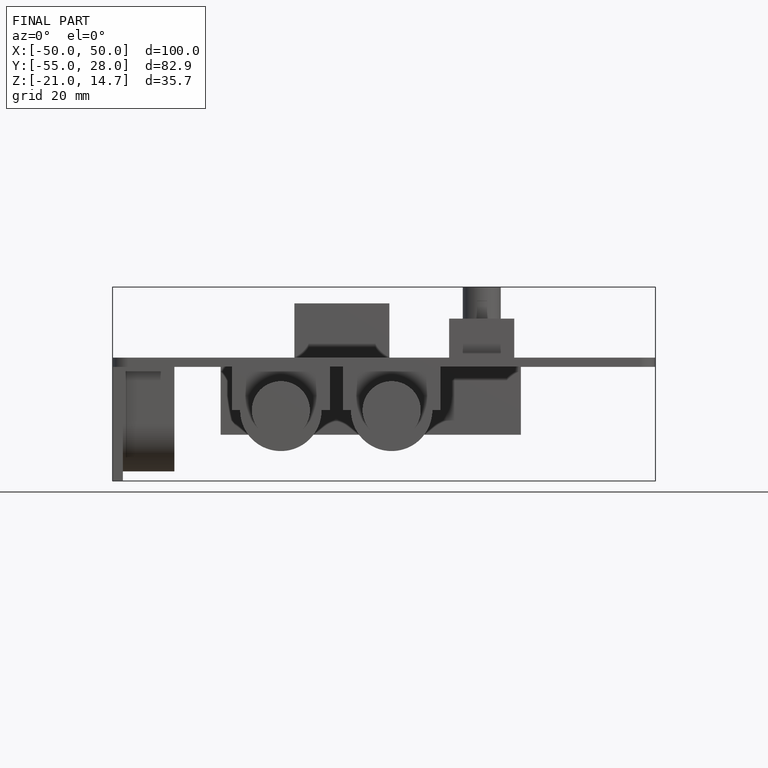
[diagram: finished part — front view with bounding-box wireframe]
